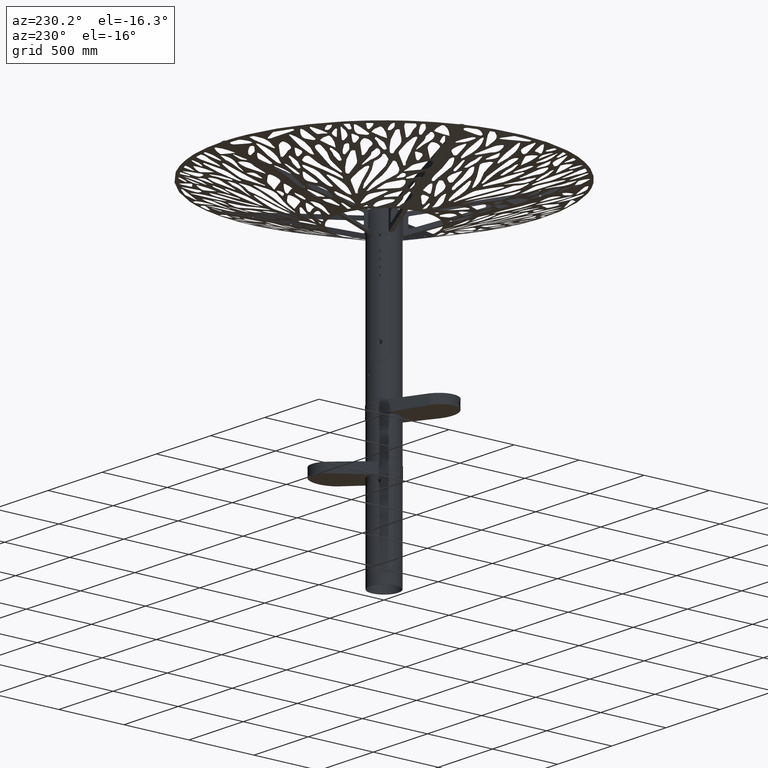
[diagram: clean part render]
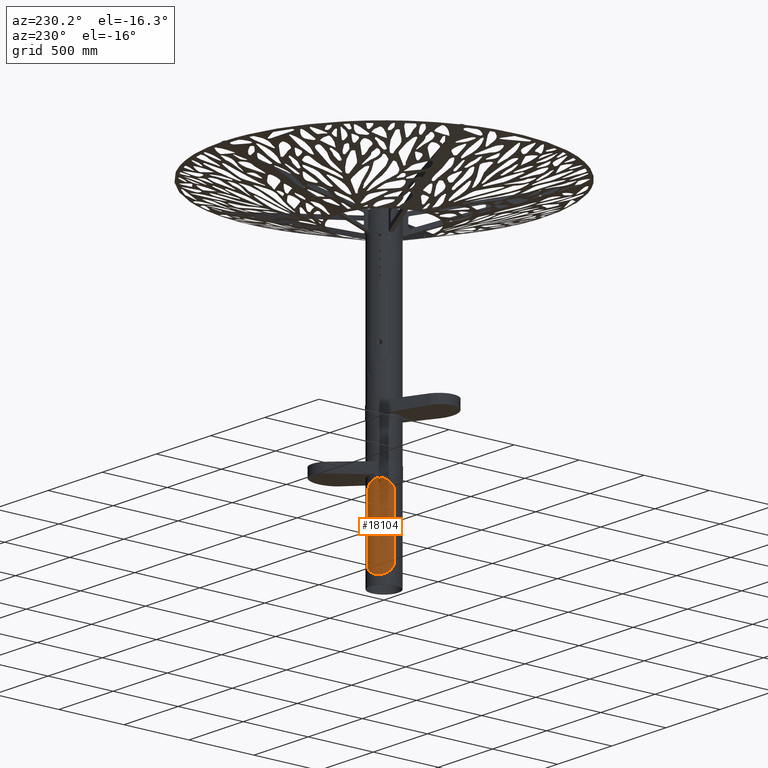
[diagram: same view with one face highlighted and labeled with its STEP entity id]
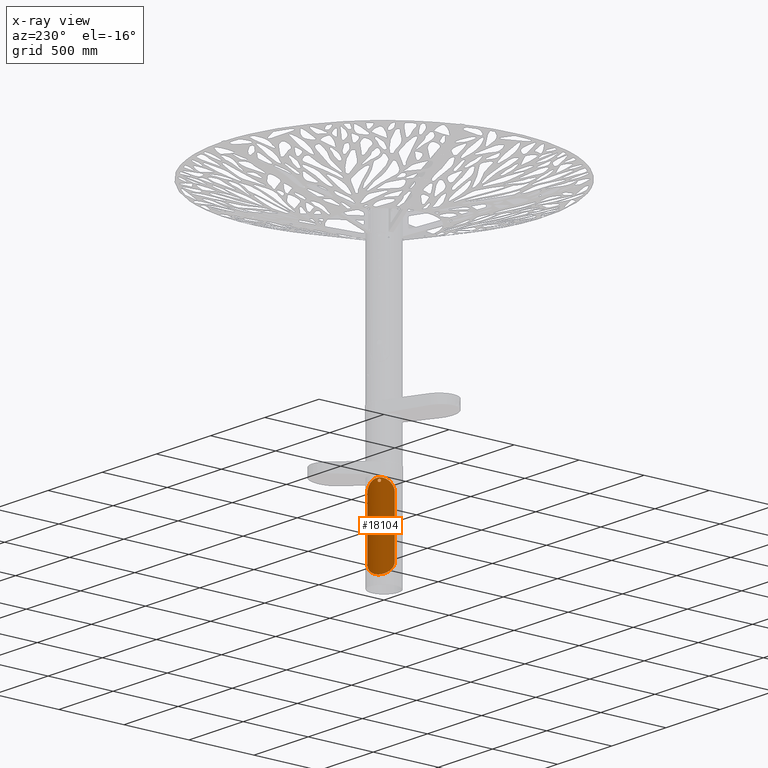
[diagram: x-ray of the same camera — body ghosted, the highlighted face saturated]
A machine part, auxiliary view. The second image highlights one B-rep face of the part: STEP entity #18104.
The next image is the same camera in x-ray: the body ghosted, the highlighted face saturated — about 0% of this face is hidden behind the body in this view.
In plain terms, the highlighted cylindrical surface (edge-blend (fillet) strip) has radius 109.5 mm, axis along (0, 0, 1).
Its self-contained STEP definition (entity closure, byte-faithful):
#194 = CARTESIAN_POINT ( 'NONE',  ( -10.00888804212701366, -109.0509610075635152, 658.2124453507931321 ) ) ;
#298 = AXIS2_PLACEMENT_3D ( 'NONE', #42860, #16537, #44723 ) ;
#343 = CARTESIAN_POINT ( 'NONE',  ( 9.471833770173292422, -109.0896122581277297, 643.2235703742151145 ) ) ;
#655 = CARTESIAN_POINT ( 'NONE',  ( -11.42928272692910596, -108.9112352412080895, 658.0293168631890239 ) ) ;
#762 = CARTESIAN_POINT ( 'NONE',  ( 63.21486257209539872, -89.43335554938128951, 89.92630172343608308 ) ) ;
#826 = EDGE_CURVE ( 'NONE', #53410, #50658, #43161, .T. ) ;
#1689 = CARTESIAN_POINT ( 'NONE',  ( 80.34378772664634027, -74.40086947905503223, 121.1421073958013039 ) ) ;
#1859 = CARTESIAN_POINT ( 'NONE',  ( -83.80000000000001137, -70.48269291109696155, 575.0000000000004547 ) ) ;
#2046 = CARTESIAN_POINT ( 'NONE',  ( 5.776485336927531300, -109.3571156523609602, 658.6132230499177922 ) ) ;
#2081 = CARTESIAN_POINT ( 'NONE',  ( 10.00022712495367294, -109.0424021080905135, 639.6808088064025242 ) ) ;
#2150 = CARTESIAN_POINT ( 'NONE',  ( 72.33697034838226614, -82.20967786904981267, 102.6733762134986989 ) ) ;
#2507 = CARTESIAN_POINT ( 'NONE',  ( 80.92720122407770589, -73.76385773347796260, 596.7650439028739129 ) ) ;
#2545 = CARTESIAN_POINT ( 'NONE',  ( 2.586483782966586986, -109.4698994030775765, 649.6652922224430995 ) ) ;
#2658 = CARTESIAN_POINT ( 'NONE',  ( -9.742965556015324324, -109.0657085849285153, 637.7234026838153795 ) ) ;
#2978 = CARTESIAN_POINT ( 'NONE',  ( 73.05062061071905077, -81.57560943933960118, 616.0827304098202148 ) ) ;
#3011 = CARTESIAN_POINT ( 'NONE',  ( 1.510243460696185241E-14, -109.5000000000000142, 650.0000000000000000 ) ) ;
#3124 = CARTESIAN_POINT ( 'NONE',  ( -2.269570573028548921, -109.4769437947116302, 630.2555027039715014 ) ) ;
#3429 = CARTESIAN_POINT ( 'NONE',  ( -83.64796854218121780, -70.66451359448086578, 580.7977967747901857 ) ) ;
#3575 = CARTESIAN_POINT ( 'NONE',  ( -9.984534115051125980, -109.0438449349170611, 640.6462960968070774 ) ) ;
#3885 = CARTESIAN_POINT ( 'NONE',  ( 72.39511753170808106, -82.15845615062670504, 617.2270732970376912 ) ) ;
#6403 = CARTESIAN_POINT ( 'NONE',  ( -7.315144256097699582, -109.2649045314014131, 61.50737235386667123 ) ) ;
#6880 = CARTESIAN_POINT ( 'NONE',  ( -45.31350016663893854, -99.71425731334582565, 74.45710067475050664 ) ) ;
#7395 = CARTESIAN_POINT ( 'NONE',  ( 3.527043362508481827, -109.4436005321825860, 649.3630835021698431 ) ) ;
#7706 = CARTESIAN_POINT ( 'NONE',  ( -39.38053864085984657, -102.1815886701521094, 648.9829500969352694 ) ) ;
#8170 = CARTESIAN_POINT ( 'NONE',  ( -68.08747353727594032, -85.77830733796308493, 623.9222163267755832 ) ) ;
#8275 = CARTESIAN_POINT ( 'NONE',  ( 45.21243392642608683, -99.76012976038171587, 74.39232333178951251 ) ) ;
#8457 = B_SPLINE_CURVE_WITH_KNOTS ( 'NONE', 3,
 ( #49980, #80053, #21797, #194, #655, #15674, #72982, #29271, #57975, #29729, #50448, #58446, #42919, #37704, #7706, #8630, #14751, #43855, #92781, #43390, #71603, #73445, #86668, #37249, #36327, #72517, #8170, #36795, #60288, #67335, #10024, #82833, #88976, #10486, #31113, #53246, #52304, #60746, #54150, #89445, #17052, #3429, #24558, #32493 ),
 .UNSPECIFIED., .F., .F.,
 ( 4, 2, 2, 2, 2, 2, 2, 2, 2, 2, 2, 2, 2, 2, 2, 2, 2, 2, 2, 2, 2, 4 ),
 ( 0.1374779199669741991, 0.1460594027067653455, 0.1503501440766609465, 0.1546408854465565197, 0.1632223681863477494, 0.1718038509261389790, 0.1760945922960345245, 0.1803853336659300977, 0.1889668164057211608, 0.1975482991455122239, 0.2018390405154077416, 0.2061297818853032870, 0.2147112646250940726, 0.2232927473648848582, 0.2275834887347802926, 0.2318742301046756993, 0.2404557128444662628, 0.2490371955842568263, 0.2533279369541519555, 0.2576186783240471123, 0.2662001610638370375, 0.2747816438036270181 ),
 .UNSPECIFIED. ) ;
#8556 = VERTEX_POINT ( 'NONE', #22139 ) ;
#8630 = CARTESIAN_POINT ( 'NONE',  ( -42.96399852040278233, -100.7519745629854810, 646.9999287909242867 ) ) ;
#8719 = ORIENTED_EDGE ( 'NONE', *, *, #90448, .T. ) ;
#8729 = CARTESIAN_POINT ( 'NONE',  ( 55.79854850674646372, -94.22353139295988456, 82.46423814178696432 ) ) ;
#8779 = CARTESIAN_POINT ( 'NONE',  ( -1.322473922066866869, -109.4938894136489722, 649.9336875665127309 ) ) ;
#9134 = CARTESIAN_POINT ( 'NONE',  ( 8.497734537399020738, -109.1699198098588397, 634.7184701730408278 ) ) ;
#9198 = CARTESIAN_POINT ( 'NONE',  ( 35.62152484290271559, -103.5523948401533403, 69.13524129451823796 ) ) ;
#9247 = CARTESIAN_POINT ( 'NONE',  ( -5.013326483757622576, -109.3855580410715902, 648.6587625448828476 ) ) ;
#9563 = CARTESIAN_POINT ( 'NONE',  ( -1.387778788495558696E-14, -109.5000000000000142, 658.8000000000004093 ) ) ;
#9664 = CARTESIAN_POINT ( 'NONE',  ( 19.82868569014650362, -107.7274724432179482, 63.52888131297795837 ) ) ;
#9714 = CARTESIAN_POINT ( 'NONE',  ( -2.586483782966569667, -109.4698994030775623, 630.3347077775570142 ) ) ;
#10024 = CARTESIAN_POINT ( 'NONE',  ( -73.01145058241822028, -81.61075251704770039, 616.1526515345836970 ) ) ;
#10060 = CARTESIAN_POINT ( 'NONE',  ( 9.742965556015349193, -109.0657085849284726, 642.2765973161846205 ) ) ;
#10171 = CARTESIAN_POINT ( 'NONE',  ( -9.491939037923367906, -109.0881120369821957, 643.2144061034996412 ) ) ;
#10486 = CARTESIAN_POINT ( 'NONE',  ( -78.17443467803595070, -76.68892562642930955, 605.3049743586683462 ) ) ;
#10549 = ORIENTED_EDGE ( 'NONE', *, *, #65112, .T. ) ;
#10632 = CARTESIAN_POINT ( 'NONE',  ( -9.116504101982680908, -109.1199116870140386, 644.1227031524235827 ) ) ;
#10935 = CARTESIAN_POINT ( 'NONE',  ( 14.37718624908704612, -108.5885370385519053, 657.6063194857380267 ) ) ;
#11395 = CARTESIAN_POINT ( 'NONE',  ( 11.54942309621184826, -108.9274931785363520, 658.0507444678847833 ) ) ;
#12527 = CARTESIAN_POINT ( 'NONE',  ( -70.33704871626585486, -83.92767845696485551, 99.42720292174317365 ) ) ;
#12727 = EDGE_CURVE ( 'NONE', #76327, #71655, #37808, .T. ) ;
#12986 = CARTESIAN_POINT ( 'NONE',  ( -38.29268162976537582, -102.6178600912844558, 70.41149501206426464 ) ) ;
#13454 = CARTESIAN_POINT ( 'NONE',  ( -20.00887553988895817, -107.6931085304717612, 63.57432638623550503 ) ) ;
#13912 = CARTESIAN_POINT ( 'NONE',  ( -83.64754808243017692, -70.66499637664695399, 139.2016543081374493 ) ) ;
#14441 = CARTESIAN_POINT ( 'NONE',  ( 9.984534115051152625, -109.0438449349170185, 639.3537039031926952 ) ) ;
#14751 = CARTESIAN_POINT ( 'NONE',  ( -45.25692507900971862, -99.73989756776990134, 645.5790941762147668 ) ) ;
#15674 = CARTESIAN_POINT ( 'NONE',  ( -14.26311267805796135, -108.5764674418489193, 657.5897062541874902 ) ) ;
#15775 = CARTESIAN_POINT ( 'NONE',  ( 15.60231506185207273, -108.3921193561203324, 62.65270038556777621 ) ) ;
#16167 = CARTESIAN_POINT ( 'NONE',  ( 1.310786273694157567, -109.4940205317637094, 649.9351171053866665 ) ) ;
#16235 = CARTESIAN_POINT ( 'NONE',  ( 72.99860139401236836, -81.62225550634498461, 103.8245329247888691 ) ) ;
#16283 = CARTESIAN_POINT ( 'NONE',  ( -9.680636859993530408, -109.0713145298287259, 642.5909189188506616 ) ) ;
#16537 = DIRECTION ( 'NONE',  ( 0.000000000000000000, 0.000000000000000000, 1.000000000000000000 ) ) ;
#16601 = CARTESIAN_POINT ( 'NONE',  ( 74.93794950144082634, -79.85891705102812921, 612.5994596060634194 ) ) ;
#16695 = CARTESIAN_POINT ( 'NONE',  ( 2.790233368329277930, -109.5022663086006389, 61.19703865336113324 ) ) ;
#16744 = CARTESIAN_POINT ( 'NONE',  ( -6.598388977446744796, -109.3013096958348740, 632.4787144152986684 ) ) ;
#17052 = CARTESIAN_POINT ( 'NONE',  ( -83.05912614243707992, -71.35571236581574794, 586.4794883653512443 ) ) ;
#17090 = CARTESIAN_POINT ( 'NONE',  ( 9.920312745469908933, -109.0497062569034057, 638.6976885274882534 ) ) ;
#17204 = CARTESIAN_POINT ( 'NONE',  ( -5.009301052556663691, -109.3867125772617186, 631.3204997566922430 ) ) ;
#17516 = CARTESIAN_POINT ( 'NONE',  ( 68.11468152765283435, -85.75703755282562213, 623.8855709987587943 ) ) ;
#17662 = CARTESIAN_POINT ( 'NONE',  ( -6.609540503929664190, -109.3013376776739278, 647.5332355974121583 ) ) ;
#17969 = CARTESIAN_POINT ( 'NONE',  ( 30.67203190272696034, -105.1254190653161942, 652.9977724081555834 ) ) ;
#18104 = ADVANCED_FACE ( 'NONE', ( #22665, #43328 ), #85666, .T. ) ;
#18420 = CARTESIAN_POINT ( 'NONE',  ( 82.62685458437721309, -71.85952416367666729, 589.2516647239311851 ) ) ;
#18585 = ORIENTED_EDGE ( 'NONE', *, *, #43428, .T. ) ;
#19558 = CARTESIAN_POINT ( 'NONE',  ( -80.36204938958975674, -74.37924075371641663, 121.2330726786326096 ) ) ;
#20024 = CARTESIAN_POINT ( 'NONE',  ( -81.77596263302417867, -72.82256566176610590, 126.6398189491580411 ) ) ;
#20494 = CARTESIAN_POINT ( 'NONE',  ( -28.09634967260064187, -105.8428952170167321, 66.03787277459345262 ) ) ;
#21428 = CARTESIAN_POINT ( 'NONE',  ( -22.73889572124400971, -107.1485304167580352, 64.29487384506897740 ) ) ;
#21478 = CARTESIAN_POINT ( 'NONE',  ( 9.871860886951683511, -109.0541171091153245, 638.3711168416809869 ) ) ;
#21797 = CARTESIAN_POINT ( 'NONE',  ( -5.737286998452297837, -109.3868972224246363, 658.6523708109435802 ) ) ;
#22139 = CARTESIAN_POINT ( 'NONE',  ( 83.79999999999998295, -70.48269291109703261, 575.0000000000004547 ) ) ;
#22368 = CARTESIAN_POINT ( 'NONE',  ( 76.06732010120934717, -78.77944550574351013, 109.7380500062469366 ) ) ;
#22665 = FACE_BOUND ( 'NONE', #36652, .T. ) ;
#23633 = CARTESIAN_POINT ( 'NONE',  ( 2.882872478612509504, -109.4716199429041978, 658.7629267511296121 ) ) ;
#23668 = CARTESIAN_POINT ( 'NONE',  ( 3.227266833341194463, -109.4541080362199352, 630.5124061972663867 ) ) ;
#24102 = CARTESIAN_POINT ( 'NONE',  ( 71.03069085072273481, -83.34090182349436304, 619.4839265233216565 ) ) ;
#24135 = CARTESIAN_POINT ( 'NONE',  ( 9.662284244526272659, -109.0729086472733371, 642.5975573343608858 ) ) ;
#24558 = CARTESIAN_POINT ( 'NONE',  ( -83.80000000000002558, -70.48269291109698997, 577.9193998248789512 ) ) ;
#24594 = CARTESIAN_POINT ( 'NONE',  ( 9.935843209009140864, -109.0483639838717238, 641.3084771259096897 ) ) ;
#24704 = CARTESIAN_POINT ( 'NONE',  ( 5.341999617757447221E-15, -109.5000000000000142, 630.0000000000000000 ) ) ;
#25016 = CARTESIAN_POINT ( 'NONE',  ( 42.98194251211092620, -100.7438306962077235, 646.9884587317102387 ) ) ;
#25480 = CARTESIAN_POINT ( 'NONE',  ( 19.93751736462807855, -107.7064030684761775, 656.4432495959973721 ) ) ;
#27203 = LINE ( 'NONE', #35646, #66564 ) ;
#27517 = CARTESIAN_POINT ( 'NONE',  ( -30.73312915814885571, -105.1075549377587066, 67.02630460831758796 ) ) ;
#27977 = CARTESIAN_POINT ( 'NONE',  ( -5.860959404122897176, -109.3526111538424459, 61.39266789670931956 ) ) ;
#28446 = CARTESIAN_POINT ( 'NONE',  ( -2.968896760688023218, -109.4693110571388530, 61.24009026633866881 ) ) ;
#28496 = CARTESIAN_POINT ( 'NONE',  ( 2.269570573028574678, -109.4769437947116160, 649.7444972960284986 ) ) ;
#28907 = CARTESIAN_POINT ( 'NONE',  ( 78.16767607024422659, -76.69584499403885047, 114.6774552103693736 ) ) ;
#28952 = CARTESIAN_POINT ( 'NONE',  ( 6.609540503929691724, -109.3013376776739563, 632.4667644025880691 ) ) ;
#29271 = CARTESIAN_POINT ( 'NONE',  ( -19.90060941305029729, -107.7141348432616752, 656.4534882889259961 ) ) ;
#29376 = CARTESIAN_POINT ( 'NONE',  ( 83.79999999999998295, -70.48269291109703261, 145.0000000000000000 ) ) ;
#29729 = CARTESIAN_POINT ( 'NONE',  ( -27.99326470046322868, -105.8970670144656339, 654.0360265879734243 ) ) ;
#29832 = CARTESIAN_POINT ( 'NONE',  ( 34.36332236107240590, -103.9769127373707533, 68.55704682561666630 ) ) ;
#30648 = CARTESIAN_POINT ( 'NONE',  ( 80.74246960883850477, -73.96610180714775140, 597.4405873164358809 ) ) ;
#30685 = CARTESIAN_POINT ( 'NONE',  ( 8.665624117233594603, -109.1566811264669496, 634.9985309797623358 ) ) ;
#30756 = CARTESIAN_POINT ( 'NONE',  ( 66.51471790938457218, -87.00710451604483353, 93.96057020986707187 ) ) ;
#31113 = CARTESIAN_POINT ( 'NONE',  ( -79.11304374569901654, -75.71543784551461442, 602.7685199929594546 ) ) ;
#31148 = CARTESIAN_POINT ( 'NONE',  ( 8.664434532016771939, -109.1567749528798146, 645.0034568313524233 ) ) ;
#31579 = CARTESIAN_POINT ( 'NONE',  ( 70.32108733982209969, -83.94106270299236883, 620.5974439877630857 ) ) ;
#31613 = CARTESIAN_POINT ( 'NONE',  ( 7.542346213067697924, -109.2409330672537635, 633.4008577950295376 ) ) ;
#31722 = CARTESIAN_POINT ( 'NONE',  ( -8.497734537398994092, -109.1699198098589108, 645.2815298269590585 ) ) ;
#32039 = CARTESIAN_POINT ( 'NONE',  ( 52.84359760411439311, -95.91231297691123814, 640.0519840955876134 ) ) ;
#32189 = CARTESIAN_POINT ( 'NONE',  ( -2.604073171889913052, -109.4709073640954955, 649.6770805958757364 ) ) ;
#32493 = CARTESIAN_POINT ( 'NONE',  ( -83.80000000000001137, -70.48269291109696155, 575.0000000000004547 ) ) ;
#34086 = CARTESIAN_POINT ( 'NONE',  ( -52.87965555614278657, -95.89242339811411853, 79.97734398685584267 ) ) ;
#35500 = CARTESIAN_POINT ( 'NONE',  ( -32.02730636702253975, -104.7200200253469404, 67.54929989918775846 ) ) ;
#35646 = CARTESIAN_POINT ( 'NONE',  ( -83.80000000000001137, -70.48269291109696155, 0.000000000000000000 ) ) ;
#36020 = CARTESIAN_POINT ( 'NONE',  ( 5.009301052556689449, -109.3867125772617612, 648.6795002433077570 ) ) ;
#36327 = CARTESIAN_POINT ( 'NONE',  ( -63.23871754951754554, -89.41644389857842157, 630.0462257126825989 ) ) ;
#36642 = CARTESIAN_POINT ( 'NONE',  ( 1.510243460696185241E-14, -109.5000000000000142, 650.0000000000000000 ) ) ;
#36652 = EDGE_LOOP ( 'NONE', ( #43938, #68360 ) ) ;
#36795 = CARTESIAN_POINT ( 'NONE',  ( -70.27721882901101935, -83.97770852597211899, 620.6646946711854298 ) ) ;
#37249 = CARTESIAN_POINT ( 'NONE',  ( -61.49535898462527683, -90.62786859089537472, 631.9882455994872998 ) ) ;
#37351 = CARTESIAN_POINT ( 'NONE',  ( 61.46946905989157273, -90.64548396162578570, 87.98374351664489268 ) ) ;
#37400 = CARTESIAN_POINT ( 'NONE',  ( -0.6609482521855287729, -109.5000000000000000, 649.9999999999998863 ) ) ;
#37704 = CARTESIAN_POINT ( 'NONE',  ( -38.15988720893098218, -102.6441020917012565, 649.6202062627525038 ) ) ;
#37806 = CARTESIAN_POINT ( 'NONE',  ( 39.32908442575066488, -102.2014203400189132, 70.98966352154185699 ) ) ;
#37808 = B_SPLINE_CURVE_WITH_KNOTS ( 'NONE', 3,
 ( #24704, #67024, #51998, #3124, #9714, #74985, #52460, #66566, #17204, #82065, #81139, #16744, #51529, #80670, #38322, #60430, #67480, #38784, #45867, #44467, #44935, #2658, #73128, #81598, #74522, #3575, #52924, #59976, #16283, #10171, #10632, #80213, #88666, #31722, #89125, #53396, #17662, #73596, #46321, #9247, #39240, #67935, #37855, #32189, #8779, #37400, #66108 ),
 .UNSPECIFIED., .F., .F.,
 ( 4, 2, 2, 2, 2, 2, 2, 2, 2, 1, 2, 2, 2, 2, 2, 2, 2, 2, 2, 2, 2, 2, 2, 4 ),
 ( 0.000000000000000000, 0.001954625556833669217, 0.002931938335250537219, 0.003909251113667404354, 0.005863876670501136888, 0.006841189448918003589, 0.007818502227334871157, 0.009773127784168373841, 0.01075044056258512605, 0.01172775334100187652, 0.01270506611941862700, 0.01368237889783537921, 0.01563700445466888189, 0.01661431723308580063, 0.01759163001150271938, 0.01954625556833655339, 0.02052356834675347214, 0.02150088112517039088, 0.02345550668200394734, 0.02541013223883750380, 0.02638744501725419356, 0.02736475779567088332, 0.02931938335250413100, 0.03127400890933738214 ),
 .UNSPECIFIED. ) ;
#37855 = CARTESIAN_POINT ( 'NONE',  ( -3.227266833341161156, -109.4541080362199210, 649.4875938027337270 ) ) ;
#38206 = CARTESIAN_POINT ( 'NONE',  ( 6.089193415913258356, -109.3308591472055156, 647.9391559682330808 ) ) ;
#38274 = CARTESIAN_POINT ( 'NONE',  ( 27.92986545952410893, -105.9138701635400963, 65.94146886708560373 ) ) ;
#38322 = CARTESIAN_POINT ( 'NONE',  ( -7.945987391607319594, -109.2119300915136222, 633.8931647000089242 ) ) ;
#38634 = CARTESIAN_POINT ( 'NONE',  ( 81.77344885470456859, -72.82539145306037653, 593.3714404412070280 ) ) ;
#38671 = CARTESIAN_POINT ( 'NONE',  ( 4.435072212548282877, -109.4105291316099482, 631.0312907444332495 ) ) ;
#38784 = CARTESIAN_POINT ( 'NONE',  ( -8.972905424860288193, -109.1318510431751179, 635.5734918661177062 ) ) ;
#39099 = CARTESIAN_POINT ( 'NONE',  ( 57.83133910458403193, -93.00855487920112807, 635.7027900066499342 ) ) ;
#39240 = CARTESIAN_POINT ( 'NONE',  ( -4.435072212548254456, -109.4105291316099624, 648.9687092555669778 ) ) ;
#39355 = CARTESIAN_POINT ( 'NONE',  ( -1.387778788495558696E-14, -109.5000000000000142, 658.8000000000004093 ) ) ;
#39549 = CARTESIAN_POINT ( 'NONE',  ( 83.64735543925498007, -70.66522798064958977, 580.8019901067365254 ) ) ;
#41141 = CARTESIAN_POINT ( 'NONE',  ( -63.27391330145297133, -89.39161168225575693, 89.99398229575302821 ) ) ;
#42089 = CARTESIAN_POINT ( 'NONE',  ( -14.45375913415570501, -108.5783107817511848, 62.40711731197482948 ) ) ;
#42552 = CARTESIAN_POINT ( 'NONE',  ( -80.93076308577869327, -73.75994867763454010, 123.2482183601850636 ) ) ;
#42598 = CARTESIAN_POINT ( 'NONE',  ( 0.6609503856019285362, -109.4999999999999858, 630.0000000000000000 ) ) ;
#42860 = CARTESIAN_POINT ( 'NONE',  ( 1.387778780781449935E-14, 0.000000000000000000, 0.000000000000000000 ) ) ;
#42919 = CARTESIAN_POINT ( 'NONE',  ( -35.67711198265971717, -103.5332428091899288, 650.8386171753601275 ) ) ;
#43027 = CARTESIAN_POINT ( 'NONE',  ( -35.84126586864622510, -103.5025480356776342, 69.20078590206007618 ) ) ;
#43161 = B_SPLINE_CURVE_WITH_KNOTS ( 'NONE', 3,
 ( #89507, #55276, #13912, #63241, #83959, #20024, #91482, #42552, #85831, #19558, #49158, #71234, #48220, #84902, #48696, #91954, #50082, #76884, #12527, #71703, #78762, #41141, #69835, #63718, #92423, #34086, #62772, #55745, #84421, #6880, #77360, #12986, #43027, #35500, #27517, #20494, #77827, #21428, #13454, #42089, #70764, #6403, #27977, #28446, #52409, #16695, #66514, #44422, #66973, #86304, #15775, #9664, #51949, #38274, #59001, #29832, #9198, #73084, #37806, #80157, #8275, #43958, #65130, #81087, #8729, #65603, #57616, #37351, #762, #30756, #86775, #50552, #80625, #2150, #16235, #58079, #22368, #28907, #59461, #1689, #72621, #79232, #44885, #88146, #58549, #79705, #73545, #29376 ),
 .UNSPECIFIED., .F., .F.,
 ( 4, 2, 2, 2, 2, 2, 2, 2, 2, 2, 2, 2, 2, 2, 2, 2, 2, 2, 2, 2, 2, 2, 2, 2, 2, 2, 2, 2, 2, 2, 2, 2, 2, 2, 2, 2, 2, 2, 2, 2, 2, 2, 2, 4 ),
 ( 0.000000000000000000, 0.008586926368863427583, 0.01717385273772685517, 0.02146731592215856896, 0.02361404751437438249, 0.02576077910659019254, 0.03434770547545344666, 0.04293463184431670077, 0.04722809502874834864, 0.05152155821317998957, 0.06010848458204332695, 0.06869541095090667127, 0.07728233731977000864, 0.08157580050420165652, 0.08586926368863333214, 0.09445619005749671115, 0.1030431164263600624, 0.1073365796107917519, 0.1116300427952234414, 0.1202169691640868204, 0.1288038955329502133, 0.1330973587173818751, 0.1373908219018135646, 0.1459777482706769436, 0.1502712114551086053, 0.1545646746395403226, 0.1631516010084036739, 0.1717385273772670251, 0.1760319905616987424, 0.1803254537461304041, 0.1889123801149937831, 0.1974993064838571621, 0.2017927696682888239, 0.2060862328527204856, 0.2146731592215838369, 0.2232600855904471882, 0.2275535487748788499, 0.2318470119593104839, 0.2404339383281738352, 0.2490208646970371864, 0.2533143278814687926, 0.2576077910659004822, 0.2661947174347636946, 0.2747816438036269626 ),
 .UNSPECIFIED. ) ;
#43328 = FACE_OUTER_BOUND ( 'NONE', #86231, .T. ) ;
#43390 = CARTESIAN_POINT ( 'NONE',  ( -54.83429874776749813, -94.78825360617018703, 638.3829592495515044 ) ) ;
#43428 = EDGE_CURVE ( 'NONE', #43667, #79713, #8457, .T. ) ;
#43459 = EDGE_CURVE ( 'NONE', #8556, #43667, #76834, .T. ) ;
#43667 = VERTEX_POINT ( 'NONE', #39355 ) ;
#43855 = CARTESIAN_POINT ( 'NONE',  ( -49.66680168020312180, -97.61887750479264980, 642.5485500451450207 ) ) ;
#43938 = ORIENTED_EDGE ( 'NONE', *, *, #12727, .T. ) ;
#43958 = CARTESIAN_POINT ( 'NONE',  ( 49.62734989037652156, -97.63899740481662093, 77.42238292975888214 ) ) ;
#43990 = EDGE_CURVE ( 'NONE', #71655, #76327, #47701, .T. ) ;
#44422 = CARTESIAN_POINT ( 'NONE',  ( 9.928629622246170072, -109.0583100019255767, 61.77792488708134044 ) ) ;
#44467 = CARTESIAN_POINT ( 'NONE',  ( -9.471833770173267553, -109.0896122581277723, 636.7764296257848855 ) ) ;
#44509 = CARTESIAN_POINT ( 'NONE',  ( 83.79999999999998295, -70.48269291109703261, 0.000000000000000000 ) ) ;
#44723 = DIRECTION ( 'NONE',  ( 1.000000000000000000, 0.000000000000000000, 0.000000000000000000 ) ) ;
#44885 = CARTESIAN_POINT ( 'NONE',  ( 81.75648615694754540, -72.84446595389302104, 126.5522578856012643 ) ) ;
#44935 = CARTESIAN_POINT ( 'NONE',  ( -9.662284244526246013, -109.0729086472733371, 637.4024426656390006 ) ) ;
#45084 = CARTESIAN_POINT ( 'NONE',  ( 5.341999617757447221E-15, -109.5000000000000142, 630.0000000000000000 ) ) ;
#45244 = CARTESIAN_POINT ( 'NONE',  ( 48.58196079209364626, -98.14043424014580808, 643.2936964066706196 ) ) ;
#45281 = CARTESIAN_POINT ( 'NONE',  ( 9.680636859993557053, -109.0713145298287543, 637.4090810811492247 ) ) ;
#45716 = CARTESIAN_POINT ( 'NONE',  ( 83.79999999999998295, -70.48269291109703261, 575.0000000000004547 ) ) ;
#45750 = CARTESIAN_POINT ( 'NONE',  ( 8.974943839440028270, -109.1316840288156698, 635.5775440329523462 ) ) ;
#45867 = CARTESIAN_POINT ( 'NONE',  ( -9.251661518747010149, -109.1086769252608804, 636.1627827862329241 ) ) ;
#46174 = CARTESIAN_POINT ( 'NONE',  ( 66.55375873488419813, -86.97731568276935832, 625.9887799264747628 ) ) ;
#46321 = CARTESIAN_POINT ( 'NONE',  ( -5.293053197393419396, -109.3723318331802972, 648.4905591017570714 ) ) ;
#46565 = ORIENTED_EDGE ( 'NONE', *, *, #43459, .T. ) ;
#46631 = CARTESIAN_POINT ( 'NONE',  ( 28.03204263100077398, -105.8599634452704521, 653.9850025486489358 ) ) ;
#47087 = CARTESIAN_POINT ( 'NONE',  ( 83.80000000000001137, -70.48269291109704682, 577.9258136224759710 ) ) ;
#47701 = B_SPLINE_CURVE_WITH_KNOTS ( 'NONE', 3,
 ( #3011, #92937, #16167, #28496, #2545, #88551, #7395, #64237, #36020, #74410, #38206, #64720, #73478, #52340, #66446, #57208, #31148, #59860, #85876, #343, #24135, #10060, #24594, #81952, #2081, #14441, #17090, #21478, #45281, #50132, #71279, #45750, #30685, #9134, #71746, #31613, #28952, #80558, #52816, #59401, #38671, #67369, #23668, #60322, #89010, #42598, #78810 ),
 .UNSPECIFIED., .F., .F.,
 ( 4, 2, 2, 2, 2, 2, 2, 2, 2, 1, 2, 2, 2, 2, 2, 2, 2, 2, 2, 2, 2, 2, 2, 4 ),
 ( 0.03127400890933738214, 0.03322863762074954735, 0.03420595197645566465, 0.03518326633216178195, 0.03713789504357400961, 0.03811520939928012691, 0.03909252375498623727, 0.04104715246639870085, 0.04202446682210493611, 0.04300178117781117137, 0.04397909553351740664, 0.04495640988922364190, 0.04691103860063610548, 0.04788835295634250033, 0.04886566731204890213, 0.05082029602346170571, 0.05179761037916810751, 0.05277492473487450236, 0.05472955344628702146, 0.05668418215769954749, 0.05766149651340590071, 0.05863881086911225393, 0.06059343958052483547, 0.06254806829193741702 ),
 .UNSPECIFIED. ) ;
#48220 = CARTESIAN_POINT ( 'NONE',  ( -78.19084169247410898, -76.67210774286935759, 114.7378505085714977 ) ) ;
#48696 = CARTESIAN_POINT ( 'NONE',  ( -74.94843717299782782, -79.84903700306287533, 107.4215639360792096 ) ) ;
#49158 = CARTESIAN_POINT ( 'NONE',  ( -80.16264600079720992, -74.59417902079680118, 120.5691593355018369 ) ) ;
#49980 = CARTESIAN_POINT ( 'NONE',  ( -1.387778788495558696E-14, -109.5000000000000142, 658.8000000000004093 ) ) ;
#50082 = CARTESIAN_POINT ( 'NONE',  ( -72.40857201972585244, -82.14658836091162186, 102.7960280253149250 ) ) ;
#50132 = CARTESIAN_POINT ( 'NONE',  ( 9.491939037923398104, -109.0881120369822241, 636.7855938965004725 ) ) ;
#50448 = CARTESIAN_POINT ( 'NONE',  ( -30.60191118684616285, -105.1708434860211554, 653.0617993186692729 ) ) ;
#50552 = CARTESIAN_POINT ( 'NONE',  ( 70.26136395740678608, -83.99098441351846134, 99.31089210141271906 ) ) ;
#50658 = VERTEX_POINT ( 'NONE', #91280 ) ;
#51529 = CARTESIAN_POINT ( 'NONE',  ( -6.840735102522024214, -109.2863563558755828, 632.6985900485345837 ) ) ;
#51949 = CARTESIAN_POINT ( 'NONE',  ( 22.57359096681703647, -107.1832928607307878, 64.24876644692076866 ) ) ;
#51998 = CARTESIAN_POINT ( 'NONE',  ( -1.310786273694132475, -109.4940205317637378, 630.0648828946135609 ) ) ;
#52304 = CARTESIAN_POINT ( 'NONE',  ( -80.73074323456857826, -73.98021519825810799, 597.5152259055804507 ) ) ;
#52340 = CARTESIAN_POINT ( 'NONE',  ( 7.532167335189374313, -109.2416121465620336, 646.6099494191450958 ) ) ;
#52409 = CARTESIAN_POINT ( 'NONE',  ( -1.526464242697824103, -109.4988143276360688, 61.20154929776586528 ) ) ;
#52460 = CARTESIAN_POINT ( 'NONE',  ( -3.527043362508457847, -109.4436005321825718, 630.6369164978302706 ) ) ;
#52783 = CARTESIAN_POINT ( 'NONE',  ( 49.66653336098244864, -97.59574977143795138, 642.5090120867574797 ) ) ;
#52816 = CARTESIAN_POINT ( 'NONE',  ( 5.293053197393565057, -109.3723318331802545, 631.5094408982430423 ) ) ;
#52924 = CARTESIAN_POINT ( 'NONE',  ( -9.920312745469882287, -109.0497062569034199, 641.3023114725117466 ) ) ;
#53246 = CARTESIAN_POINT ( 'NONE',  ( -80.34800764060850042, -74.39630684984599895, 598.8436315713820477 ) ) ;
#53396 = CARTESIAN_POINT ( 'NONE',  ( -7.542346213067672167, -109.2409330672537919, 646.5991422049705761 ) ) ;
#53410 = VERTEX_POINT ( 'NONE', #73341 ) ;
#53440 = LINE ( 'NONE', #44509, #79976 ) ;
#53696 = CARTESIAN_POINT ( 'NONE',  ( 38.24046046523996978, -102.6373907933507184, 649.6153654154961714 ) ) ;
#54150 = CARTESIAN_POINT ( 'NONE',  ( -81.75903632288012091, -72.84160054387263017, 593.4363683658116315 ) ) ;
#55276 = CARTESIAN_POINT ( 'NONE',  ( -83.80000000000001137, -70.48269291109696155, 142.0760400039511069 ) ) ;
#55745 = CARTESIAN_POINT ( 'NONE',  ( -49.70613318944006664, -97.57557450470709171, 77.52015626592189790 ) ) ;
#57208 = CARTESIAN_POINT ( 'NONE',  ( 8.494289526659050793, -109.1701911829534311, 645.2872567262705843 ) ) ;
#57616 = CARTESIAN_POINT ( 'NONE',  ( 58.69886801886024585, -92.44406546982887107, 85.17851409589862044 ) ) ;
#57975 = CARTESIAN_POINT ( 'NONE',  ( -22.64259194513694951, -107.1686740650571323, 655.7318363312210749 ) ) ;
#58079 = CARTESIAN_POINT ( 'NONE',  ( 74.90659037854028668, -79.88871206598247454, 107.3364593374921299 ) ) ;
#58446 = CARTESIAN_POINT ( 'NONE',  ( -34.42017414020507715, -103.9580922012334554, 651.4173539351302225 ) ) ;
#58549 = CARTESIAN_POINT ( 'NONE',  ( 83.05819750242356747, -71.35679689021918648, 133.5133510412888143 ) ) ;
#59001 = CARTESIAN_POINT ( 'NONE',  ( 30.54119054669392241, -105.1885493023536782, 66.91435641016776970 ) ) ;
#59359 = CARTESIAN_POINT ( 'NONE',  ( 63.25008715928426284, -89.40851592250164970, 630.0334893903211650 ) ) ;
#59401 = CARTESIAN_POINT ( 'NONE',  ( 5.013326483757651886, -109.3855580410715902, 631.3412374551172661 ) ) ;
#59461 = CARTESIAN_POINT ( 'NONE',  ( 79.10737869912932752, -75.72137780949108787, 117.2151894290407625 ) ) ;
#59824 = CARTESIAN_POINT ( 'NONE',  ( 83.06081562864726209, -71.35373448280124364, 586.4649059430767011 ) ) ;
#59860 = CARTESIAN_POINT ( 'NONE',  ( 8.972905424860320167, -109.1318510431751747, 644.4265081338822938 ) ) ;
#59976 = CARTESIAN_POINT ( 'NONE',  ( -9.871860886951653313, -109.0541171091153529, 641.6288831583188994 ) ) ;
#60288 = CARTESIAN_POINT ( 'NONE',  ( -70.98386276569591757, -83.38080156599608017, 619.5586087472306644 ) ) ;
#60322 = CARTESIAN_POINT ( 'NONE',  ( 2.604073171889941030, -109.4709073640955523, 630.3229194041243773 ) ) ;
#60430 = CARTESIAN_POINT ( 'NONE',  ( -8.494289526659025924, -109.1701911829534737, 634.7127432737297568 ) ) ;
#60746 = CARTESIAN_POINT ( 'NONE',  ( -81.43580198943264747, -73.20338310709647089, 594.8140973835064642 ) ) ;
#61195 = CARTESIAN_POINT ( 'NONE',  ( 79.12441259863938114, -75.70364749264069815, 602.7378528118071017 ) ) ;
#62014 = ORIENTED_EDGE ( 'NONE', *, *, #826, .T. ) ;
#62772 = CARTESIAN_POINT ( 'NONE',  ( -51.83435444126109104, -96.46186871623272907, 79.14084204395204836 ) ) ;
#63241 = CARTESIAN_POINT ( 'NONE',  ( -83.06173743863882919, -71.35265788173984447, 133.5422128384477958 ) ) ;
#63718 = CARTESIAN_POINT ( 'NONE',  ( -57.86141049517677004, -92.98980049084603650, 84.32594972348313433 ) ) ;
#64237 = CARTESIAN_POINT ( 'NONE',  ( 4.435107827378181433, -109.4118217921417653, 648.9866172032644727 ) ) ;
#64720 = CARTESIAN_POINT ( 'NONE',  ( 6.598388977446766113, -109.3013096958348314, 647.5212855847015589 ) ) ;
#65112 = EDGE_CURVE ( 'NONE', #79713, #53410, #27203, .T. ) ;
#65130 = CARTESIAN_POINT ( 'NONE',  ( 51.74661513925779133, -96.52979316694509748, 79.03200530990082484 ) ) ;
#65603 = CARTESIAN_POINT ( 'NONE',  ( 57.74985716847682227, -93.04034544562033204, 84.26159762006086851 ) ) ;
#66108 = CARTESIAN_POINT ( 'NONE',  ( 1.510243460696185241E-14, -109.5000000000000142, 650.0000000000000000 ) ) ;
#66412 = CARTESIAN_POINT ( 'NONE',  ( 7.231699557049553029, -109.2704763763772462, 658.4999182882706918 ) ) ;
#66446 = CARTESIAN_POINT ( 'NONE',  ( 7.945987391607350681, -109.2119300915136648, 646.1068352999914168 ) ) ;
#66514 = CARTESIAN_POINT ( 'NONE',  ( 5.653921948829949251, -109.3912877390329612, 61.34189187113651798 ) ) ;
#66564 = VECTOR ( 'NONE', #92100, 1000.000000000000000 ) ;
#66566 = CARTESIAN_POINT ( 'NONE',  ( -4.435107827378158341, -109.4118217921417511, 631.0133827967357547 ) ) ;
#66973 = CARTESIAN_POINT ( 'NONE',  ( 11.35005536012040395, -108.9195322955075085, 61.95980138555871974 ) ) ;
#67024 = CARTESIAN_POINT ( 'NONE',  ( -0.6609493188928616814, -109.5000000000000000, 630.0000000000001137 ) ) ;
#67335 = CARTESIAN_POINT ( 'NONE',  ( -72.35051879978489353, -82.19774493457312303, 617.3034374020588757 ) ) ;
#67369 = CARTESIAN_POINT ( 'NONE',  ( 4.135439193599613539, -109.4223007296984207, 630.8892610332172808 ) ) ;
#67480 = CARTESIAN_POINT ( 'NONE',  ( -8.664434532016745294, -109.1567749528798146, 634.9965431686475767 ) ) ;
#67792 = CARTESIAN_POINT ( 'NONE',  ( 55.89814361436274481, -94.18661207291729909, 637.4892255556150076 ) ) ;
#67935 = CARTESIAN_POINT ( 'NONE',  ( -4.135439193599578900, -109.4223007296984633, 649.1107389667828329 ) ) ;
#68256 = CARTESIAN_POINT ( 'NONE',  ( 76.09091853237006831, -78.75656484967532833, 610.2105925802345610 ) ) ;
#68360 = ORIENTED_EDGE ( 'NONE', *, *, #43990, .T. ) ;
#69835 = CARTESIAN_POINT ( 'NONE',  ( -61.53313883681495611, -90.60197925381083905, 88.05304199223715500 ) ) ;
#70764 = CARTESIAN_POINT ( 'NONE',  ( -11.62868377929900099, -108.9189905596641523, 61.96040377907295493 ) ) ;
#71234 = CARTESIAN_POINT ( 'NONE',  ( -79.13008358731599401, -75.69769873409244099, 117.2784830459084020 ) ) ;
#71279 = CARTESIAN_POINT ( 'NONE',  ( 9.116504101982709329, -109.1199116870140386, 635.8772968475768721 ) ) ;
#71603 = CARTESIAN_POINT ( 'NONE',  ( -55.83127601932781658, -94.20412863124207092, 637.5065236710324825 ) ) ;
#71655 = VERTEX_POINT ( 'NONE', #36642 ) ;
#71703 = CARTESIAN_POINT ( 'NONE',  ( -68.13306967749028331, -85.74238945517221566, 96.14014082169737208 ) ) ;
#71746 = CARTESIAN_POINT ( 'NONE',  ( 7.955291268996876219, -109.2112396919928443, 633.9059423082752573 ) ) ;
#72517 = CARTESIAN_POINT ( 'NONE',  ( -66.53478199761022438, -86.99171581998916736, 626.0131860115570817 ) ) ;
#72621 = CARTESIAN_POINT ( 'NONE',  ( 80.72697231783246252, -73.98433419197534988, 122.4712080086964932 ) ) ;
#72982 = CARTESIAN_POINT ( 'NONE',  ( -15.67885719312085335, -108.3810555961165960, 657.3327376532506605 ) ) ;
#73084 = CARTESIAN_POINT ( 'NONE',  ( 38.10678371957112631, -102.6638424364410014, 70.35264452022207138 ) ) ;
#73128 = CARTESIAN_POINT ( 'NONE',  ( -9.935843209009112442, -109.0483639838717238, 638.6915228740904240 ) ) ;
#73341 = CARTESIAN_POINT ( 'NONE',  ( -83.80000000000001137, -70.48269291109696155, 144.9999999999999716 ) ) ;
#73445 = CARTESIAN_POINT ( 'NONE',  ( -57.78019910071439824, -93.02149119961350721, 635.7095171720669669 ) ) ;
#73478 = CARTESIAN_POINT ( 'NONE',  ( 6.840735102521988686, -109.2863563558755402, 647.3014099514654163 ) ) ;
#73545 = CARTESIAN_POINT ( 'NONE',  ( 83.79999999999996874, -70.48269291109701840, 142.0787482655805150 ) ) ;
#73596 = CARTESIAN_POINT ( 'NONE',  ( -6.104681202406887941, -109.3310404163791389, 647.9471310207169381 ) ) ;
#73901 = CARTESIAN_POINT ( 'NONE',  ( 1.439667872705153284, -109.5000000000000142, 658.8000000000002956 ) ) ;
#74376 = CARTESIAN_POINT ( 'NONE',  ( 78.18409121633636971, -76.67902105984724415, 605.2797224826557567 ) ) ;
#74410 = CARTESIAN_POINT ( 'NONE',  ( 5.824319388549517029, -109.3453304903052299, 648.1353554954500851 ) ) ;
#74522 = CARTESIAN_POINT ( 'NONE',  ( -10.00022712495364274, -109.0424021080905277, 640.3191911935973621 ) ) ;
#74832 = CARTESIAN_POINT ( 'NONE',  ( 61.50733143778609957, -90.61955221004507166, 631.9749126951783182 ) ) ;
#74985 = CARTESIAN_POINT ( 'NONE',  ( -3.214828808977021612, -109.4532486928023332, 630.5251571077013750 ) ) ;
#75284 = CARTESIAN_POINT ( 'NONE',  ( 22.67006424168394219, -107.1631692253130126, 655.7245520799276619 ) ) ;
#75741 = CARTESIAN_POINT ( 'NONE',  ( 45.26913573274267577, -99.73445913527650930, 645.5714452393776810 ) ) ;
#76327 = VERTEX_POINT ( 'NONE', #45084 ) ;
#76834 = B_SPLINE_CURVE_WITH_KNOTS ( 'NONE', 3,
 ( #45716, #47087, #39549, #59824, #18420, #38634, #89897, #2507, #30648, #88514, #81920, #61195, #74376, #68256, #16601, #2978, #3885, #24102, #31579, #17516, #46174, #59359, #74832, #39099, #67792, #32039, #81448, #52783, #45244, #75741, #25016, #53696, #80984, #82373, #17969, #46631, #88046, #75284, #25480, #10935, #11395, #66412, #2046, #23633, #73901, #9563 ),
 .UNSPECIFIED., .F., .F.,
 ( 4, 2, 2, 2, 2, 2, 2, 2, 2, 2, 2, 2, 2, 2, 2, 2, 2, 2, 2, 2, 2, 2, 4 ),
 ( 0.000000000000000000, 0.008592369997935198761, 0.01718473999587039752, 0.02148092499483784251, 0.02362901749432156154, 0.02577710999380528056, 0.03436947999174107954, 0.04296184998967687851, 0.04725803498864492025, 0.05155421998761296198, 0.06014658998554903158, 0.06873895998348510117, 0.07733132998142117076, 0.08162751498038921250, 0.08592369997935724035, 0.09451606997729333770, 0.1031084399752294350, 0.1074046249741975462, 0.1117008099731656295, 0.1202931799711018240, 0.1288855499690380324, 0.1331817349680061158, 0.1374779199669741991 ),
 .UNSPECIFIED. ) ;
#76884 = CARTESIAN_POINT ( 'NONE',  ( -71.04575449507518670, -83.32805079622582412, 100.5401605873195479 ) ) ;
#77360 = CARTESIAN_POINT ( 'NONE',  ( -43.02882659793518627, -100.7237546843733895, 73.03963157168585951 ) ) ;
#77827 = CARTESIAN_POINT ( 'NONE',  ( -26.76506685291353094, -106.1874989517702232, 65.57673585192242172 ) ) ;
#78762 = CARTESIAN_POINT ( 'NONE',  ( -66.57387515419004842, -86.96187377572600496, 94.03757035703615941 ) ) ;
#78810 = CARTESIAN_POINT ( 'NONE',  ( 5.341999617757447221E-15, -109.5000000000000142, 630.0000000000000000 ) ) ;
#79232 = CARTESIAN_POINT ( 'NONE',  ( 81.43286231261943442, -73.20665749102298037, 125.1737682913399965 ) ) ;
#79705 = CARTESIAN_POINT ( 'NONE',  ( 83.64777624775960874, -70.66474484202385042, 139.1985514345981301 ) ) ;
#79713 = VERTEX_POINT ( 'NONE', #1859 ) ;
#79976 = VECTOR ( 'NONE', #88238, 1000.000000000000000 ) ;
#80053 = CARTESIAN_POINT ( 'NONE',  ( -2.875687383950841447, -109.5000000000000142, 658.8000000000004093 ) ) ;
#80157 = CARTESIAN_POINT ( 'NONE',  ( 42.91683659294061925, -100.7721387189685487, 72.97186461843897121 ) ) ;
#80213 = CARTESIAN_POINT ( 'NONE',  ( -8.974943839440001625, -109.1316840288156698, 644.4224559670476538 ) ) ;
#80558 = CARTESIAN_POINT ( 'NONE',  ( 6.104681202407024720, -109.3310404163791105, 632.0528689792832893 ) ) ;
#80625 = CARTESIAN_POINT ( 'NONE',  ( 70.96879561845950946, -83.39363562635338667, 100.4173754831315790 ) ) ;
#80670 = CARTESIAN_POINT ( 'NONE',  ( -7.532167335189397406, -109.2416121465620051, 633.3900505808552452 ) ) ;
#80984 = CARTESIAN_POINT ( 'NONE',  ( 35.78622773758596054, -103.5216596307350585, 650.8253007966762880 ) ) ;
#81087 = CARTESIAN_POINT ( 'NONE',  ( 54.80057966858102247, -94.80776473893591572, 81.58786714327960965 ) ) ;
#81139 = CARTESIAN_POINT ( 'NONE',  ( -6.089193415913231711, -109.3308591472054871, 632.0608440317670329 ) ) ;
#81448 = CARTESIAN_POINT ( 'NONE',  ( 51.79703461636044182, -96.48192636187503979, 640.8885305191968200 ) ) ;
#81598 = CARTESIAN_POINT ( 'NONE',  ( -9.999538319980503687, -109.0424652766062650, 639.3405034782834946 ) ) ;
#81920 = CARTESIAN_POINT ( 'NONE',  ( 80.15817092540088140, -74.59898920858331905, 599.4455303813357432 ) ) ;
#81952 = CARTESIAN_POINT ( 'NONE',  ( 9.999538319980532108, -109.0424652766062650, 640.6594965217165054 ) ) ;
#82065 = CARTESIAN_POINT ( 'NONE',  ( -5.824319388549491272, -109.3453304903052157, 631.8646445045500286 ) ) ;
#82373 = CARTESIAN_POINT ( 'NONE',  ( 31.96775949085268920, -104.7382302706707122, 652.4753182457696994 ) ) ;
#82833 = CARTESIAN_POINT ( 'NONE',  ( -74.91716863831099715, -79.87875320390067202, 612.6423753384644897 ) ) ;
#83959 = CARTESIAN_POINT ( 'NONE',  ( -82.62831309299536997, -71.85783472862178201, 130.7571376993324179 ) ) ;
#84421 = CARTESIAN_POINT ( 'NONE',  ( -48.62272876835368862, -98.12022905265327211, 76.73534052849758780 ) ) ;
#84902 = CARTESIAN_POINT ( 'NONE',  ( -76.10007729901955997, -78.74768609549721532, 109.8093243670661820 ) ) ;
#85666 = CYLINDRICAL_SURFACE ( 'NONE', #298, 109.5000000000000142 ) ;
#85831 = CARTESIAN_POINT ( 'NONE',  ( -80.74626598235366259, -73.96195621467271053, 122.5730887926800960 ) ) ;
#85876 = CARTESIAN_POINT ( 'NONE',  ( 9.251661518747036794, -109.1086769252608804, 643.8372172137670759 ) ) ;
#86231 = EDGE_LOOP ( 'NONE', ( #8719, #46565, #18585, #10549, #62014 ) ) ;
#86304 = CARTESIAN_POINT ( 'NONE',  ( 14.18593928435741880, -108.5865894057384224, 62.39698873997280515 ) ) ;
#86668 = CARTESIAN_POINT ( 'NONE',  ( -58.72806498311486223, -92.42550686273342819, 634.7928023396458457 ) ) ;
#86775 = CARTESIAN_POINT ( 'NONE',  ( 68.06916511320525842, -85.79287658319603338, 96.05223045237984536 ) ) ;
#88046 = CARTESIAN_POINT ( 'NONE',  ( 26.69992623895028672, -106.2039104817633444, 654.4452026187951788 ) ) ;
#88146 = CARTESIAN_POINT ( 'NONE',  ( 82.62080234852450644, -71.86661265596275427, 130.7083279253923536 ) ) ;
#88238 = DIRECTION ( 'NONE',  ( 0.000000000000000000, 0.000000000000000000, 1.000000000000000000 ) ) ;
#88514 = CARTESIAN_POINT ( 'NONE',  ( 80.35780576641180062, -74.38382665262112425, 598.7812827670927618 ) ) ;
#88551 = CARTESIAN_POINT ( 'NONE',  ( 3.214828808977039376, -109.4532486928023758, 649.4748428922983976 ) ) ;
#88666 = CARTESIAN_POINT ( 'NONE',  ( -8.665624117233566182, -109.1566811264669212, 645.0014690202376642 ) ) ;
#88976 = CARTESIAN_POINT ( 'NONE',  ( -76.07653530401228181, -78.77051686452156787, 610.2419421179851042 ) ) ;
#89010 = CARTESIAN_POINT ( 'NONE',  ( 1.322473922066891516, -109.4938894136489722, 630.0663124334876102 ) ) ;
#89125 = CARTESIAN_POINT ( 'NONE',  ( -7.955291268996848686, -109.2112396919928585, 646.0940576917247427 ) ) ;
#89445 = CARTESIAN_POINT ( 'NONE',  ( -82.62227513663734157, -71.86490668053744457, 589.2828024949401424 ) ) ;
#89507 = CARTESIAN_POINT ( 'NONE',  ( -83.80000000000001137, -70.48269291109696155, 144.9999999999999716 ) ) ;
#89897 = CARTESIAN_POINT ( 'NONE',  ( 81.45514430856430010, -73.18185491239952967, 594.7346295099865756 ) ) ;
#90448 = EDGE_CURVE ( 'NONE', #50658, #8556, #53440, .T. ) ;
#91280 = CARTESIAN_POINT ( 'NONE',  ( 83.79999999999998295, -70.48269291109703261, 145.0000000000000000 ) ) ;
#91482 = CARTESIAN_POINT ( 'NONE',  ( -81.45805176977906115, -73.17861417222157172, 125.2774374260722254 ) ) ;
#91954 = CARTESIAN_POINT ( 'NONE',  ( -73.06330754115032278, -81.56423742912768660, 103.9398628342703006 ) ) ;
#92100 = DIRECTION ( 'NONE',  ( -0.000000000000000000, -0.000000000000000000, -1.000000000000000000 ) ) ;
#92423 = CARTESIAN_POINT ( 'NONE',  ( -55.93049735468319739, -94.16734472871000605, 82.53981642183818224 ) ) ;
#92781 = CARTESIAN_POINT ( 'NONE',  ( -51.78369878112594904, -96.50985392183423528, 640.9388194473053773 ) ) ;
#92937 = CARTESIAN_POINT ( 'NONE',  ( 0.6609493188928706742, -109.4999999999999858, 650.0000000000000000 ) ) ;